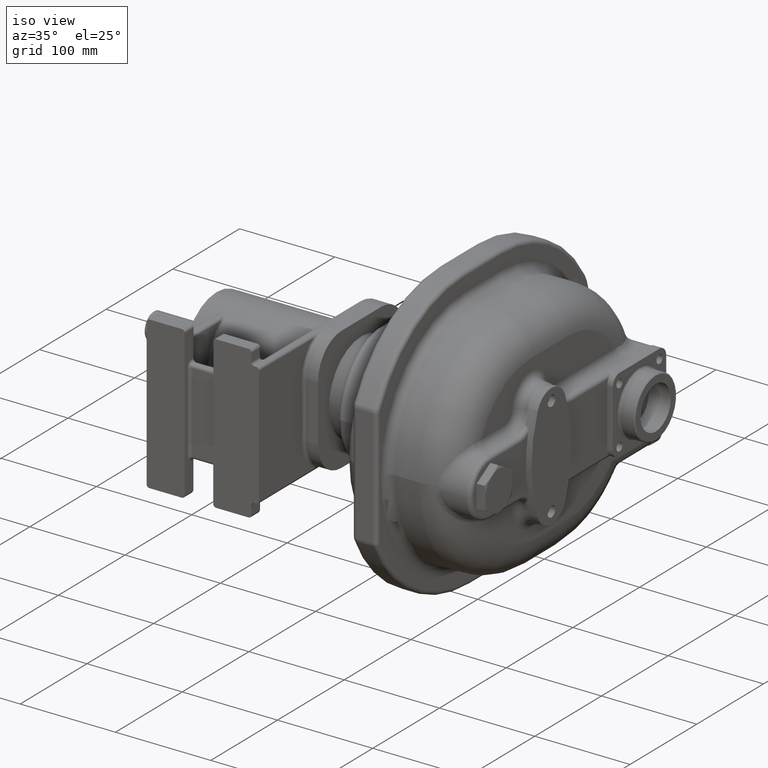
[diagram: clean part render]
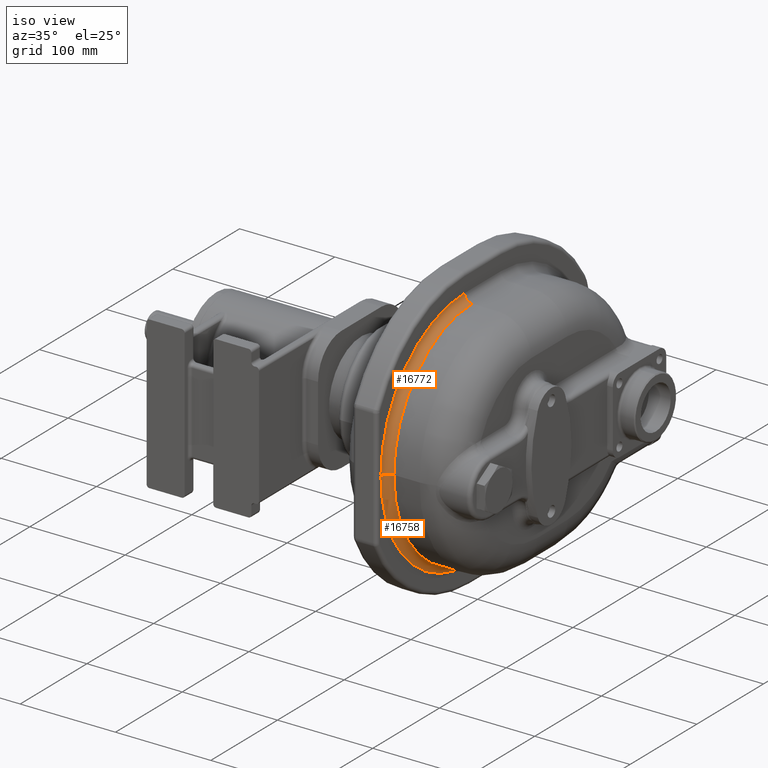
[diagram: same view with one multi-face feature highlighted, each face labeled with its STEP entity id]
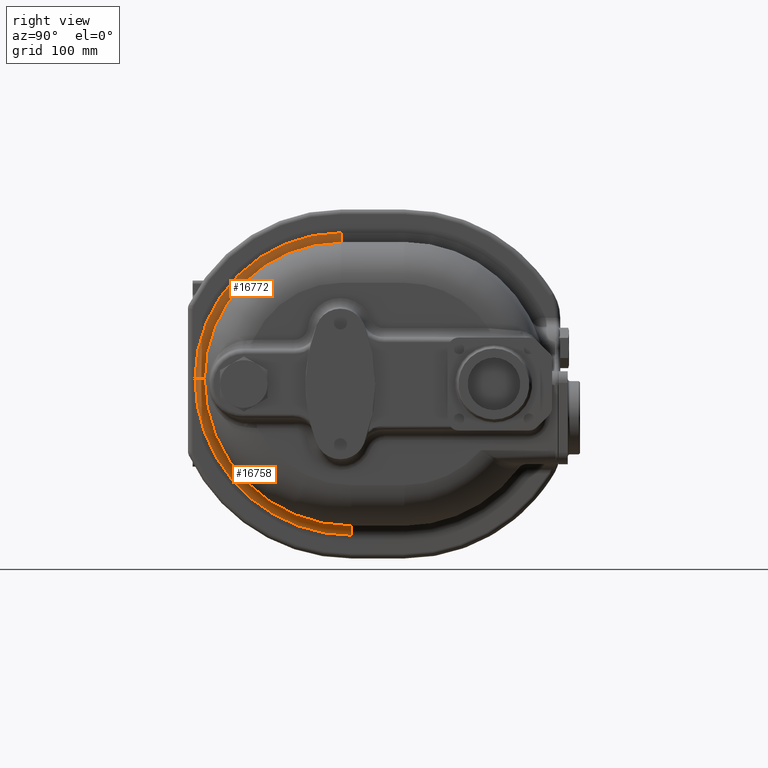
[diagram: same view with one multi-face feature highlighted, each face labeled with its STEP entity id]
A machine part, iso view. The highlighted faces form ONE feature: a constant-radius fillet chain: 2 tangent blend faces with common blend radius 8 mm. The faces share edges in the B-rep.
A second angle (right view) of the same feature is appended — it is thin or edge-on in the first view.
Their STEP definitions:
[1] entity #16772 (Torus):
#4286=CARTESIAN_POINT('',(-1.05E1,-4.5E0,-4.5E0));
#4287=DIRECTION('',(1.E0,0.E0,0.E0));
#4288=DIRECTION('',(0.E0,0.E0,1.E0));
#4289=AXIS2_PLACEMENT_3D('',#4286,#4287,#4288);
#5044=CARTESIAN_POINT('',(-2.5E0,-1.3E2,-4.5E0));
#5045=DIRECTION('',(0.E0,0.E0,-1.E0));
#5046=DIRECTION('',(-1.E0,0.E0,0.E0));
#5047=AXIS2_PLACEMENT_3D('',#5044,#5045,#5046);
#5049=CARTESIAN_POINT('',(-2.5E0,-4.5E0,1.21E2));
#5050=DIRECTION('',(0.E0,-1.E0,0.E0));
#5051=DIRECTION('',(-1.E0,0.E0,0.E0));
#5052=AXIS2_PLACEMENT_3D('',#5049,#5050,#5051);
#6454=CARTESIAN_POINT('',(-2.5E0,-4.5E0,-4.5E0));
#6455=DIRECTION('',(1.E0,0.E0,0.E0));
#6456=DIRECTION('',(0.E0,0.E0,1.E0));
#6457=AXIS2_PLACEMENT_3D('',#6454,#6455,#6456);
#8646=CARTESIAN_POINT('',(-1.05E1,-4.5E0,1.21E2));
#8647=VERTEX_POINT('',#8646);
#8648=CARTESIAN_POINT('',(-2.5E0,-4.5E0,1.13E2));
#8649=VERTEX_POINT('',#8648);
#8650=CARTESIAN_POINT('',(-1.05E1,-1.3E2,-4.5E0));
#8651=VERTEX_POINT('',#8650);
#8652=CARTESIAN_POINT('',(-2.5E0,-1.22E2,-4.5E0));
#8653=VERTEX_POINT('',#8652);
#16759=CARTESIAN_POINT('',(-2.5E0,-4.5E0,-4.5E0));
#16760=DIRECTION('',(-1.E0,0.E0,0.E0));
#16761=DIRECTION('',(0.E0,1.859029776511E-4,9.999999827200E-1));
#16762=AXIS2_PLACEMENT_3D('',#16759,#16760,#16761);
#16763=TOROIDAL_SURFACE('',#16762,1.255E2,8.E0);
#16764=ORIENTED_EDGE('',*,*,#16015,.F.);
#16766=ORIENTED_EDGE('',*,*,#16765,.T.);
#16768=ORIENTED_EDGE('',*,*,#16767,.T.);
#16769=ORIENTED_EDGE('',*,*,#16751,.F.);
#16770=EDGE_LOOP('',(#16764,#16766,#16768,#16769));
#16771=FACE_OUTER_BOUND('',#16770,.F.);
#16772=ADVANCED_FACE('',(#16771),#16763,.F.);
#4290=CIRCLE('',#4289,1.255E2);
#5048=CIRCLE('',#5047,8.E0);
#5053=CIRCLE('',#5052,8.E0);
#6458=CIRCLE('',#6457,1.175E2);
#16015=EDGE_CURVE('',#8647,#8651,#4290,.T.);
#16751=EDGE_CURVE('',#8651,#8653,#5048,.T.);
#16765=EDGE_CURVE('',#8647,#8649,#5053,.T.);
#16767=EDGE_CURVE('',#8649,#8653,#6458,.T.);
[2] entity #16758 (Torus):
#4291=CARTESIAN_POINT('',(-1.05E1,4.5E0,-4.5E0));
#4292=DIRECTION('',(1.E0,0.E0,0.E0));
#4293=DIRECTION('',(0.E0,-1.E0,0.E0));
#4294=AXIS2_PLACEMENT_3D('',#4291,#4292,#4293);
#5039=CARTESIAN_POINT('',(-2.5E0,4.5E0,-1.39E2));
#5040=DIRECTION('',(0.E0,1.E0,0.E0));
#5041=DIRECTION('',(-1.E0,0.E0,0.E0));
#5042=AXIS2_PLACEMENT_3D('',#5039,#5040,#5041);
#5044=CARTESIAN_POINT('',(-2.5E0,-1.3E2,-4.5E0));
#5045=DIRECTION('',(0.E0,0.E0,-1.E0));
#5046=DIRECTION('',(-1.E0,0.E0,0.E0));
#5047=AXIS2_PLACEMENT_3D('',#5044,#5045,#5046);
#6444=CARTESIAN_POINT('',(-2.5E0,4.5E0,-4.5E0));
#6445=DIRECTION('',(1.E0,0.E0,0.E0));
#6446=DIRECTION('',(0.E0,-1.E0,0.E0));
#6447=AXIS2_PLACEMENT_3D('',#6444,#6445,#6446);
#8650=CARTESIAN_POINT('',(-1.05E1,-1.3E2,-4.5E0));
#8651=VERTEX_POINT('',#8650);
#8652=CARTESIAN_POINT('',(-2.5E0,-1.22E2,-4.5E0));
#8653=VERTEX_POINT('',#8652);
#8656=CARTESIAN_POINT('',(-2.5E0,4.5E0,-1.31E2));
#8657=VERTEX_POINT('',#8656);
#8672=CARTESIAN_POINT('',(-1.05E1,4.5E0,-1.39E2));
#8673=VERTEX_POINT('',#8672);
#16745=CARTESIAN_POINT('',(-2.5E0,4.5E0,-4.5E0));
#16746=DIRECTION('',(-1.E0,0.E0,0.E0));
#16747=DIRECTION('',(0.E0,-9.999999850914E-1,1.726766789810E-4));
#16748=AXIS2_PLACEMENT_3D('',#16745,#16746,#16747);
#16749=TOROIDAL_SURFACE('',#16748,1.345E2,8.E0);
#16750=ORIENTED_EDGE('',*,*,#16017,.F.);
#16752=ORIENTED_EDGE('',*,*,#16751,.T.);
#16754=ORIENTED_EDGE('',*,*,#16753,.T.);
#16755=ORIENTED_EDGE('',*,*,#16737,.F.);
#16756=EDGE_LOOP('',(#16750,#16752,#16754,#16755));
#16757=FACE_OUTER_BOUND('',#16756,.F.);
#16758=ADVANCED_FACE('',(#16757),#16749,.F.);
#4295=CIRCLE('',#4294,1.345E2);
#5043=CIRCLE('',#5042,8.E0);
#5048=CIRCLE('',#5047,8.E0);
#6448=CIRCLE('',#6447,1.265E2);
#16017=EDGE_CURVE('',#8651,#8673,#4295,.T.);
#16737=EDGE_CURVE('',#8673,#8657,#5043,.T.);
#16751=EDGE_CURVE('',#8651,#8653,#5048,.T.);
#16753=EDGE_CURVE('',#8653,#8657,#6448,.T.);